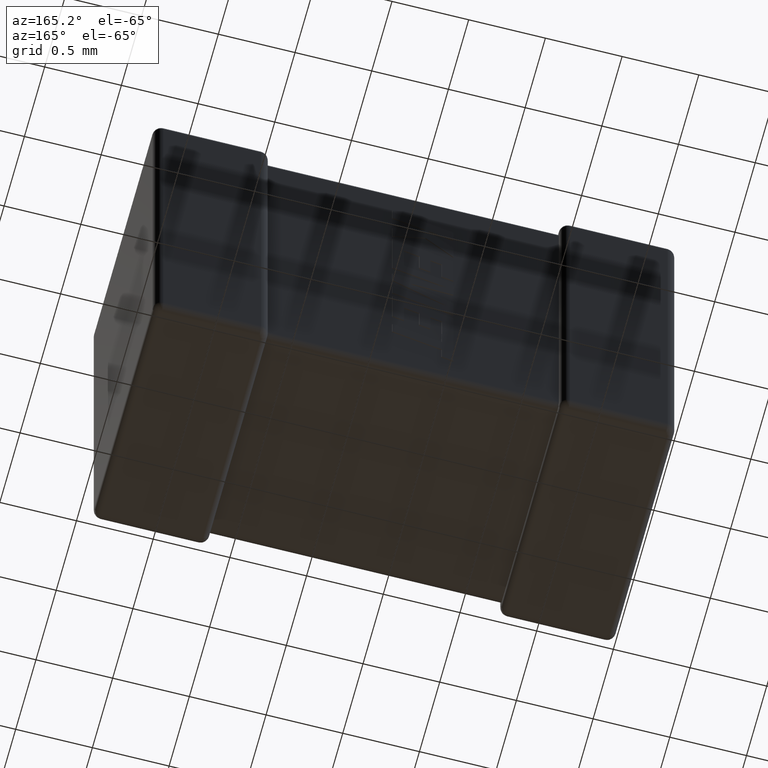
[diagram: clean part render]
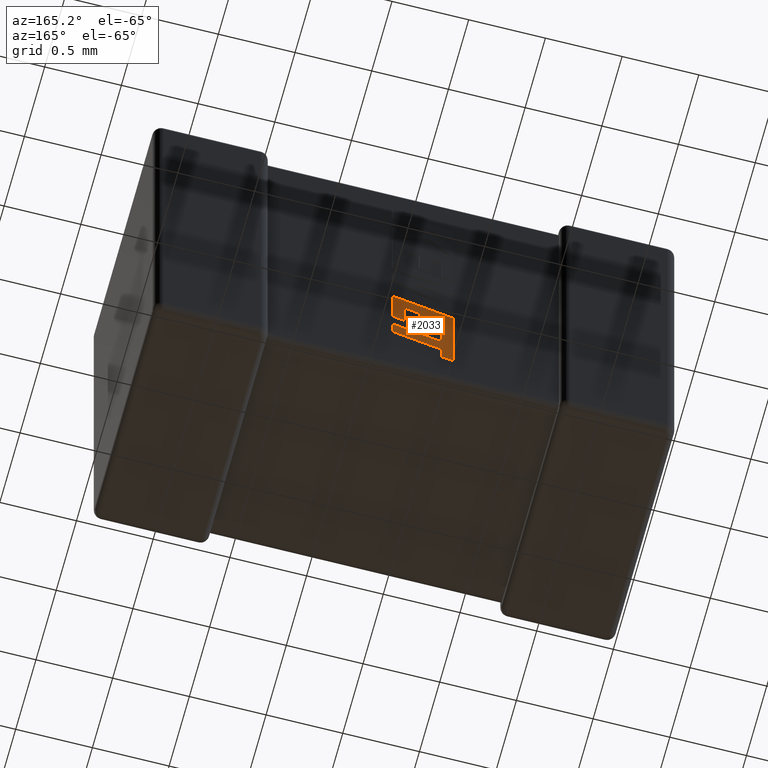
[diagram: same view with one face highlighted and labeled with its STEP entity id]
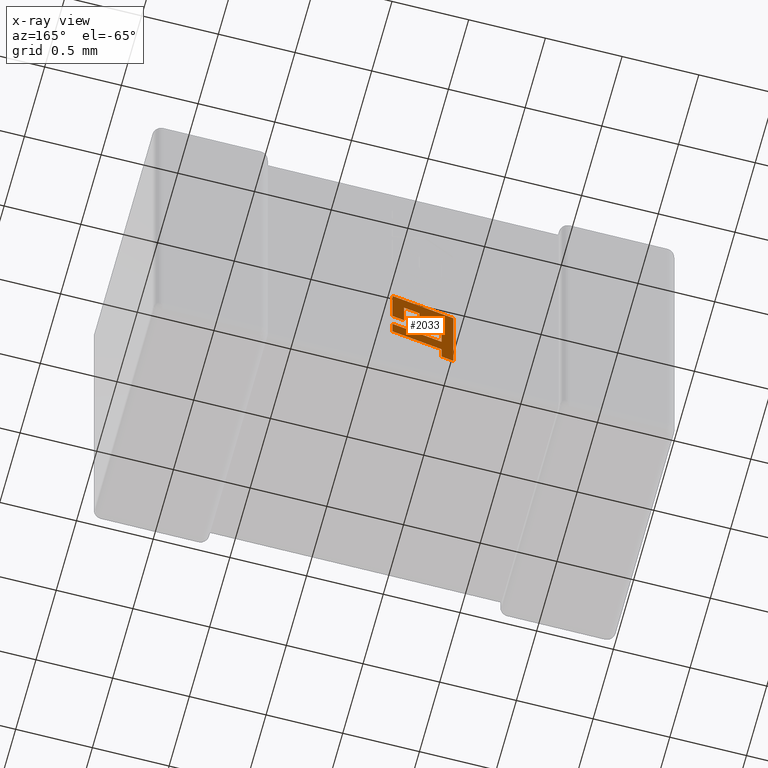
[diagram: x-ray of the same camera — body ghosted, the highlighted face saturated]
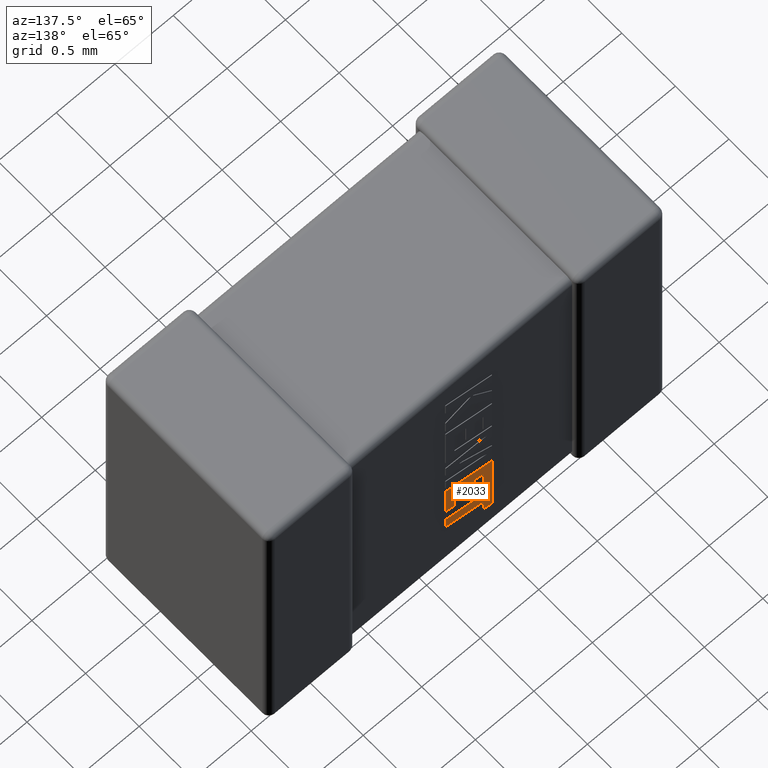
[diagram: same view with one face highlighted and labeled with its STEP entity id]
A machine part, auxiliary view. The second image highlights one B-rep face of the part: STEP entity #2033.
The next image is the same camera in x-ray: the body ghosted, the highlighted face saturated — about 0% of this face is hidden behind the body in this view.
A second angle (auxiliary view) of the same face is appended — the face is thin or edge-on in the first view.
In plain terms, the highlighted planar face has unit normal (0, 1, 0).
Its self-contained STEP definition (entity closure, byte-faithful):
#17 = CARTESIAN_POINT ( 'NONE',  ( 1.661831346059415848, 1.498839999999999728, -1.775552455031555121 ) ) ;
#29 = CARTESIAN_POINT ( 'NONE',  ( 1.836000000000006738, 1.498839999999999728, -2.028450023350382825 ) ) ;
#72 = EDGE_CURVE ( 'NONE', #1278, #3691, #3236, .T. ) ;
#140 = VERTEX_POINT ( 'NONE', #1896 ) ;
#196 = EDGE_LOOP ( 'NONE', ( #3312, #878, #3666, #2833, #2347, #2511, #3413, #1617, #3386, #951, #1020, #2072, #3261, #1092, #3568, #3900, #3517 ) ) ;
#198 = CARTESIAN_POINT ( 'NONE',  ( 1.439070229052686667, 1.498839999999999728, -1.727085510544205116 ) ) ;
#240 = CARTESIAN_POINT ( 'NONE',  ( 1.439070229052686667, 1.498839999999999728, -2.364283781867570156 ) ) ;
#294 = EDGE_CURVE ( 'NONE', #641, #4220, #602, .T. ) ;
#362 = DIRECTION ( 'NONE',  ( -0.9601763114346048011, 0.000000000000000000, -0.2793947940814874298 ) ) ;
#452 = EDGE_CURVE ( 'NONE', #4220, #1612, #1820, .T. ) ;
#471 = VECTOR ( 'NONE', #1955, 1000.000000000000114 ) ;
#522 = CARTESIAN_POINT ( 'NONE',  ( 1.515718616155726339, 1.498839999999999728, -2.342256360764721101 ) ) ;
#602 = LINE ( 'NONE', #3032, #777 ) ;
#631 = VECTOR ( 'NONE', #1138, 1000.000000000000114 ) ;
#641 = VERTEX_POINT ( 'NONE', #759 ) ;
#652 = DIRECTION ( 'NONE',  ( 7.938847109757215918E-05, 0.000000000000000000, -0.9999999968487351953 ) ) ;
#669 = EDGE_CURVE ( 'NONE', #1612, #3713, #3860, .T. ) ;
#722 = VERTEX_POINT ( 'NONE', #1685 ) ;
#745 = CARTESIAN_POINT ( 'NONE',  ( 1.515709988556392718, 1.498839999999999728, -2.120536977100616838 ) ) ;
#751 = DIRECTION ( 'NONE',  ( 0.000000000000000000, 0.000000000000000000, 1.000000000000000000 ) ) ;
#756 = VERTEX_POINT ( 'NONE', #2588 ) ;
#759 = CARTESIAN_POINT ( 'NONE',  ( 1.760469387423751142, 1.498839999999999728, -1.747392916304139288 ) ) ;
#777 = VECTOR ( 'NONE', #3889, 1000.000000000000114 ) ;
#781 = DIRECTION ( 'NONE',  ( 0.000000000000000000, 0.000000000000000000, -1.000000000000000000 ) ) ;
#858 = EDGE_CURVE ( 'NONE', #3849, #4132, #2064, .T. ) ;
#859 = DIRECTION ( 'NONE',  ( 0.9610664548998939516, 0.000000000000000000, 0.2763173343569854667 ) ) ;
#878 = ORIENTED_EDGE ( 'NONE', *, *, #1872, .T. ) ;
#916 = CARTESIAN_POINT ( 'NONE',  ( 1.439070229052686667, 1.498839999999999728, -2.364283781867570156 ) ) ;
#917 = CARTESIAN_POINT ( 'NONE',  ( 1.836000000000006738, 1.498839999999999728, -1.612914584263951401 ) ) ;
#919 = DIRECTION ( 'NONE',  ( -0.9620200793798762140, 0.000000000000000000, -0.2729786930695083380 ) ) ;
#947 = DIRECTION ( 'NONE',  ( 0.000000000000000000, 0.000000000000000000, -1.000000000000000000 ) ) ;
#951 = ORIENTED_EDGE ( 'NONE', *, *, #858, .T. ) ;
#957 = LINE ( 'NONE', #522, #2866 ) ;
#1020 = ORIENTED_EDGE ( 'NONE', *, *, #2977, .T. ) ;
#1091 = VECTOR ( 'NONE', #3982, 1000.000000000000114 ) ;
#1092 = ORIENTED_EDGE ( 'NONE', *, *, #452, .T. ) ;
#1098 = EDGE_CURVE ( 'NONE', #722, #756, #3429, .T. ) ;
#1138 = DIRECTION ( 'NONE',  ( -0.9615323037684311291, 0.000000000000000000, -0.2746918797667186607 ) ) ;
#1176 = LINE ( 'NONE', #2600, #1398 ) ;
#1217 = CARTESIAN_POINT ( 'NONE',  ( 1.588465923456928497, 1.498839999999999728, -1.796487452407086405 ) ) ;
#1244 = LINE ( 'NONE', #1598, #3672 ) ;
#1278 = VERTEX_POINT ( 'NONE', #1217 ) ;
#1377 = LINE ( 'NONE', #3616, #1091 ) ;
#1398 = VECTOR ( 'NONE', #652, 1000.000000000000227 ) ;
#1421 = EDGE_CURVE ( 'NONE', #2136, #1795, #957, .T. ) ;
#1440 = DIRECTION ( 'NONE',  ( 0.004650693823668813724, 0.000000000000000000, -0.9999891854650021505 ) ) ;
#1446 = EDGE_CURVE ( 'NONE', #2537, #2785, #3843, .T. ) ;
#1462 = VECTOR ( 'NONE', #1915, 1000.000000000000000 ) ;
#1537 = CARTESIAN_POINT ( 'NONE',  ( -0.8277549025643631264, 1.498839999999999284, 0.006109351898183301016 ) ) ;
#1557 = DIRECTION ( 'NONE',  ( 0.000000000000000000, 0.000000000000000000, 1.000000000000000000 ) ) ;
#1563 = VECTOR ( 'NONE', #2158, 1000.000000000000000 ) ;
#1587 = LINE ( 'NONE', #1847, #4635 ) ;
#1592 = CARTESIAN_POINT ( 'NONE',  ( 1.588465923456928497, 1.498839999999999728, -1.966827799437227853 ) ) ;
#1598 = CARTESIAN_POINT ( 'NONE',  ( 1.760469387423751142, 1.498839999999999728, -1.934238914441522628 ) ) ;
#1612 = VERTEX_POINT ( 'NONE', #3627 ) ;
#1616 = VECTOR ( 'NONE', #781, 1000.000000000000000 ) ;
#1617 = ORIENTED_EDGE ( 'NONE', *, *, #2091, .T. ) ;
#1685 = CARTESIAN_POINT ( 'NONE',  ( 1.836000000000006738, 1.498839999999999728, -2.141520250729723074 ) ) ;
#1690 = VECTOR ( 'NONE', #1440, 1000.000000000000227 ) ;
#1693 = VECTOR ( 'NONE', #751, 1000.000000000000000 ) ;
#1720 = VERTEX_POINT ( 'NONE', #198 ) ;
#1732 = EDGE_CURVE ( 'NONE', #3691, #2945, #3749, .T. ) ;
#1795 = VERTEX_POINT ( 'NONE', #240 ) ;
#1820 = LINE ( 'NONE', #17, #1462 ) ;
#1829 = CARTESIAN_POINT ( 'NONE',  ( 1.515718616155726339, 1.498839999999999728, -2.342256360764721101 ) ) ;
#1847 = CARTESIAN_POINT ( 'NONE',  ( 1.836000000000006738, 1.498839999999999728, -1.912806671653933366 ) ) ;
#1868 = EDGE_CURVE ( 'NONE', #2785, #722, #3973, .T. ) ;
#1872 = EDGE_CURVE ( 'NONE', #2945, #2537, #2538, .T. ) ;
#1896 = CARTESIAN_POINT ( 'NONE',  ( 1.760469387423751142, 1.498839999999999728, -1.934238914441522628 ) ) ;
#1910 = AXIS2_PLACEMENT_3D ( 'NONE', #1537, #2974, #2249 ) ;
#1915 = DIRECTION ( 'NONE',  ( 0.000000000000000000, 0.000000000000000000, -1.000000000000000000 ) ) ;
#1937 = CARTESIAN_POINT ( 'NONE',  ( 1.514637048819877929, 1.498839999999999728, -1.817970385261019617 ) ) ;
#1955 = DIRECTION ( 'NONE',  ( 0.002813301676014988168, 0.000000000000000000, -0.9999960426590095430 ) ) ;
#1959 = DIRECTION ( 'NONE',  ( -0.9610992334305258344, 0.000000000000000000, -0.2762033010288897916 ) ) ;
#1981 = VECTOR ( 'NONE', #947, 1000.000000000000000 ) ;
#2033 = ADVANCED_FACE ( 'NONE', ( #4062 ), #4517, .T. ) ;
#2060 = CARTESIAN_POINT ( 'NONE',  ( 1.836000000000006738, 1.498839999999999728, -2.141520250729723074 ) ) ;
#2064 = LINE ( 'NONE', #917, #1981 ) ;
#2072 = ORIENTED_EDGE ( 'NONE', *, *, #4214, .T. ) ;
#2091 = EDGE_CURVE ( 'NONE', #1795, #1720, #4147, .T. ) ;
#2136 = VERTEX_POINT ( 'NONE', #1829 ) ;
#2158 = DIRECTION ( 'NONE',  ( 0.000000000000000000, 0.000000000000000000, 1.000000000000000000 ) ) ;
#2221 = CARTESIAN_POINT ( 'NONE',  ( 1.836000000000006738, 1.498839999999999728, -1.912806671653933366 ) ) ;
#2249 = DIRECTION ( 'NONE',  ( 0.000000000000000000, 0.000000000000000000, 1.000000000000000000 ) ) ;
#2347 = ORIENTED_EDGE ( 'NONE', *, *, #1098, .T. ) ;
#2409 = DIRECTION ( 'NONE',  ( -0.9610876102172833946, 0.000000000000000000, -0.2762437428917279281 ) ) ;
#2472 = EDGE_CURVE ( 'NONE', #1720, #3849, #1377, .T. ) ;
#2511 = ORIENTED_EDGE ( 'NONE', *, *, #3476, .T. ) ;
#2537 = VERTEX_POINT ( 'NONE', #745 ) ;
#2538 = LINE ( 'NONE', #4669, #1690 ) ;
#2588 = CARTESIAN_POINT ( 'NONE',  ( 1.515709988557377930, 1.498839999999999728, -2.233580652540275047 ) ) ;
#2600 = CARTESIAN_POINT ( 'NONE',  ( 1.515709988557377930, 1.498839999999999728, -2.233580652540275047 ) ) ;
#2685 = CARTESIAN_POINT ( 'NONE',  ( 1.515148777108214828, 1.498839999999999728, -1.999865653591700765 ) ) ;
#2785 = VERTEX_POINT ( 'NONE', #2883 ) ;
#2833 = ORIENTED_EDGE ( 'NONE', *, *, #1868, .T. ) ;
#2866 = VECTOR ( 'NONE', #1959, 1000.000000000000114 ) ;
#2883 = CARTESIAN_POINT ( 'NONE',  ( 1.836000000000006738, 1.498839999999999728, -2.028450023350382825 ) ) ;
#2945 = VERTEX_POINT ( 'NONE', #2685 ) ;
#2974 = DIRECTION ( 'NONE',  ( 0.000000000000000000, 1.000000000000000000, 0.000000000000000000 ) ) ;
#2977 = EDGE_CURVE ( 'NONE', #4132, #140, #1587, .T. ) ;
#2989 = CARTESIAN_POINT ( 'NONE',  ( 1.661831346059415848, 1.498839999999999728, -1.775552455031555121 ) ) ;
#3028 = CARTESIAN_POINT ( 'NONE',  ( 1.515709988556392718, 1.498839999999999728, -2.120536977100616838 ) ) ;
#3032 = CARTESIAN_POINT ( 'NONE',  ( 1.760469387423751142, 1.498839999999999728, -1.747392916304139288 ) ) ;
#3183 = CARTESIAN_POINT ( 'NONE',  ( 1.588465923456928497, 1.498839999999999728, -1.796487452407086405 ) ) ;
#3236 = LINE ( 'NONE', #3183, #3573 ) ;
#3261 = ORIENTED_EDGE ( 'NONE', *, *, #294, .T. ) ;
#3312 = ORIENTED_EDGE ( 'NONE', *, *, #1732, .T. ) ;
#3386 = ORIENTED_EDGE ( 'NONE', *, *, #2472, .T. ) ;
#3413 = ORIENTED_EDGE ( 'NONE', *, *, #1421, .T. ) ;
#3429 = LINE ( 'NONE', #2060, #3999 ) ;
#3476 = EDGE_CURVE ( 'NONE', #756, #2136, #1176, .T. ) ;
#3517 = ORIENTED_EDGE ( 'NONE', *, *, #72, .T. ) ;
#3568 = ORIENTED_EDGE ( 'NONE', *, *, #669, .T. ) ;
#3572 = LINE ( 'NONE', #3640, #1563 ) ;
#3573 = VECTOR ( 'NONE', #362, 1000.000000000000114 ) ;
#3616 = CARTESIAN_POINT ( 'NONE',  ( 1.439070229052686667, 1.498839999999999728, -1.727085510544205116 ) ) ;
#3627 = CARTESIAN_POINT ( 'NONE',  ( 1.661831346059415848, 1.498839999999999728, -1.945868663934890108 ) ) ;
#3640 = CARTESIAN_POINT ( 'NONE',  ( 1.588465923456928497, 1.498839999999999728, -1.966827799437227853 ) ) ;
#3666 = ORIENTED_EDGE ( 'NONE', *, *, #1446, .T. ) ;
#3672 = VECTOR ( 'NONE', #1557, 1000.000000000000000 ) ;
#3691 = VERTEX_POINT ( 'NONE', #3750 ) ;
#3713 = VERTEX_POINT ( 'NONE', #1592 ) ;
#3749 = LINE ( 'NONE', #1937, #471 ) ;
#3750 = CARTESIAN_POINT ( 'NONE',  ( 1.514637048819877929, 1.498839999999999728, -1.817970385261019617 ) ) ;
#3843 = LINE ( 'NONE', #3028, #4451 ) ;
#3849 = VERTEX_POINT ( 'NONE', #3922 ) ;
#3860 = LINE ( 'NONE', #4648, #631 ) ;
#3889 = DIRECTION ( 'NONE',  ( -0.9615825319869173438, 0.000000000000000000, -0.2745159998572558879 ) ) ;
#3900 = ORIENTED_EDGE ( 'NONE', *, *, #4329, .T. ) ;
#3922 = CARTESIAN_POINT ( 'NONE',  ( 1.836000000000006738, 1.498839999999999728, -1.612914584263951401 ) ) ;
#3973 = LINE ( 'NONE', #29, #1616 ) ;
#3982 = DIRECTION ( 'NONE',  ( 0.9610348236706638403, 0.000000000000000000, 0.2764273280489756290 ) ) ;
#3999 = VECTOR ( 'NONE', #2409, 1000.000000000000000 ) ;
#4062 = FACE_OUTER_BOUND ( 'NONE', #196, .T. ) ;
#4132 = VERTEX_POINT ( 'NONE', #2221 ) ;
#4147 = LINE ( 'NONE', #916, #1693 ) ;
#4214 = EDGE_CURVE ( 'NONE', #140, #641, #1244, .T. ) ;
#4220 = VERTEX_POINT ( 'NONE', #2989 ) ;
#4329 = EDGE_CURVE ( 'NONE', #3713, #1278, #3572, .T. ) ;
#4451 = VECTOR ( 'NONE', #859, 1000.000000000000000 ) ;
#4517 = PLANE ( 'NONE',  #1910 ) ;
#4635 = VECTOR ( 'NONE', #919, 1000.000000000000000 ) ;
#4648 = CARTESIAN_POINT ( 'NONE',  ( 1.661831346059415848, 1.498839999999999728, -1.945868663934890108 ) ) ;
#4669 = CARTESIAN_POINT ( 'NONE',  ( 1.515148777108214828, 1.498839999999999728, -1.999865653591700765 ) ) ;